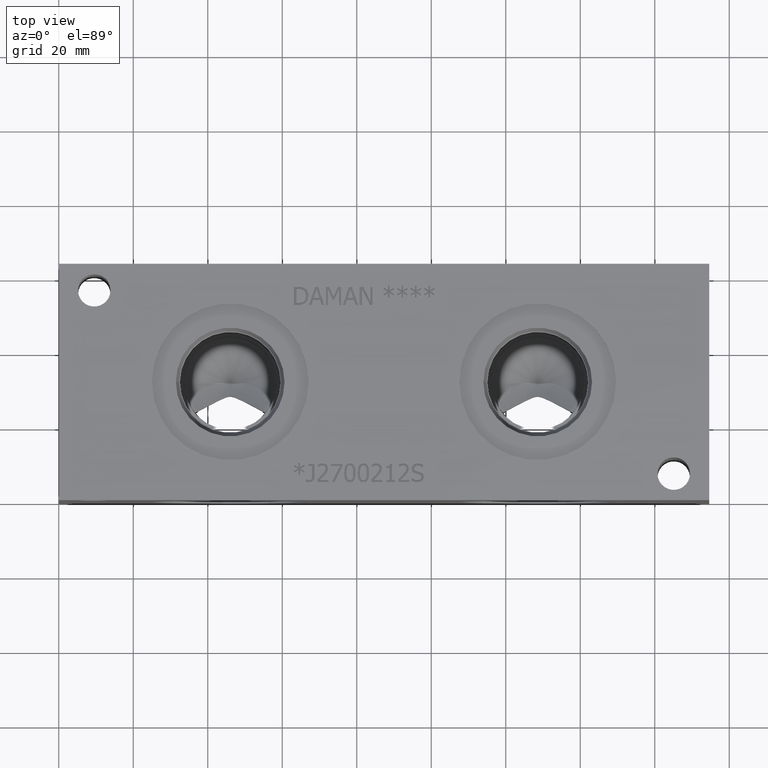
[diagram: clean part render]
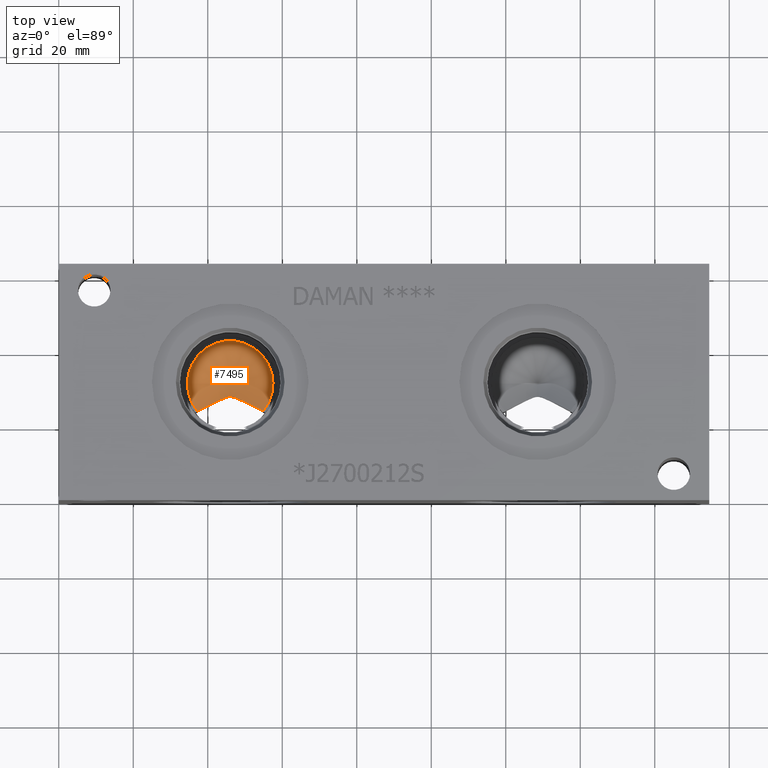
[diagram: same view with one face highlighted and labeled with its STEP entity id]
A machine part, top view. The second image highlights one B-rep face of the part: STEP entity #7495.
In plain terms, the highlighted conical surface has half-angle 60 deg.
Its self-contained STEP definition (entity closure, byte-faithful):
#45=CONICAL_SURFACE('',#7897,5.7531,1.0471975511966);
#171=CIRCLE('',#7898,11.5062);
#172=CIRCLE('',#7899,11.5062);
#443=B_SPLINE_CURVE_WITH_KNOTS('',3,(#12519,#12520,#12521,#12522,#12523,
#12524,#12525,#12526,#12527,#12528,#12529,#12530,#12531,#12532,#12533,#12534,
#12535,#12536,#12537,#12538,#12539,#12540),.UNSPECIFIED.,.F.,.F.,(4,2,2,
2,2,2,2,2,2,2,4),(2.02414178422364,2.44755953079405,2.85548611925973,3.05944941349257,
3.16143106060898,3.2634127077254,3.36539435484182,3.46737600195824,3.67133929619108,
4.07926588465675,4.50268363122717),.UNSPECIFIED.);
#886=FACE_OUTER_BOUND('',#1295,.T.);
#1295=EDGE_LOOP('',(#6435,#6436,#6437,#6438,#6439));
#2031=LINE('',#12828,#2745);
#2745=VECTOR('',#9376,5.7531);
#3358=VERTEX_POINT('',#12513);
#3359=VERTEX_POINT('',#12518);
#3431=VERTEX_POINT('',#12825);
#3432=VERTEX_POINT('',#12827);
#4339=EDGE_CURVE('',#3358,#3359,#443,.T.);
#4453=EDGE_CURVE('',#3358,#3431,#171,.T.);
#4454=EDGE_CURVE('',#3431,#3432,#2031,.T.);
#4455=EDGE_CURVE('',#3431,#3359,#172,.T.);
#6435=ORIENTED_EDGE('',*,*,#4339,.F.);
#6436=ORIENTED_EDGE('',*,*,#4453,.T.);
#6437=ORIENTED_EDGE('',*,*,#4454,.T.);
#6438=ORIENTED_EDGE('',*,*,#4454,.F.);
#6439=ORIENTED_EDGE('',*,*,#4455,.T.);
#7495=ADVANCED_FACE('',(#886),#45,.F.);
#7897=AXIS2_PLACEMENT_3D('',#12824,#9372,#9373);
#7898=AXIS2_PLACEMENT_3D('',#12826,#9374,#9375);
#7899=AXIS2_PLACEMENT_3D('',#12829,#9377,#9378);
#9372=DIRECTION('center_axis',(0.,0.,1.));
#9373=DIRECTION('ref_axis',(1.,0.,0.));
#9374=DIRECTION('center_axis',(0.,0.,1.));
#9375=DIRECTION('ref_axis',(1.,0.,0.));
#9376=DIRECTION('',(0.866025403784439,1.06057523872491E-16,-0.5));
#9377=DIRECTION('center_axis',(0.,0.,1.));
#9378=DIRECTION('ref_axis',(1.,0.,0.));
#12513=CARTESIAN_POINT('',(54.8277320002297,24.3404773001675,38.71061));
#12518=CARTESIAN_POINT('',(37.2218679997704,24.3404773001675,38.71061));
#12519=CARTESIAN_POINT('Ctrl Pts',(54.8277320002297,24.3404773001675,38.71061));
#12520=CARTESIAN_POINT('Ctrl Pts',(53.8037958349633,24.8781816467988,38.058416596529));
#12521=CARTESIAN_POINT('Ctrl Pts',(52.8020873279615,25.4022862071663,37.4250296666646));
#12522=CARTESIAN_POINT('Ctrl Pts',(50.8720991065431,26.3988534717776,36.2317778502111));
#12523=CARTESIAN_POINT('Ctrl Pts',(49.9607158487557,26.8665779999652,35.6767070399648));
#12524=CARTESIAN_POINT('Ctrl Pts',(48.5884347527706,27.5245012542527,34.9171818063573));
#12525=CARTESIAN_POINT('Ctrl Pts',(48.1378926534055,27.7346725440007,34.6787239571889));
#12526=CARTESIAN_POINT('Ctrl Pts',(47.4218816822241,28.0184978243897,34.365515407002));
#12527=CARTESIAN_POINT('Ctrl Pts',(47.1782936899452,28.1073718094077,34.2691754412068));
#12528=CARTESIAN_POINT('Ctrl Pts',(46.6491084338573,28.2529939942306,34.1137682086338));
#12529=CARTESIAN_POINT('Ctrl Pts',(46.3647388237214,28.3118540956523,34.0525167960387));
#12530=CARTESIAN_POINT('Ctrl Pts',(45.6848611762786,28.3118540956523,34.0525167960387));
#12531=CARTESIAN_POINT('Ctrl Pts',(45.4004915661427,28.2529939942306,34.1137682086338));
#12532=CARTESIAN_POINT('Ctrl Pts',(44.8713063100548,28.1073718094077,34.2691754412068));
#12533=CARTESIAN_POINT('Ctrl Pts',(44.627718317776,28.0184978243897,34.365515407002));
#12534=CARTESIAN_POINT('Ctrl Pts',(43.9117073465945,27.7346725440007,34.6787239571889));
#12535=CARTESIAN_POINT('Ctrl Pts',(43.4611652472293,27.5245012542527,34.9171818063573));
#12536=CARTESIAN_POINT('Ctrl Pts',(42.0888841512443,26.8665779999652,35.6767070399648));
#12537=CARTESIAN_POINT('Ctrl Pts',(41.1775008934569,26.3988534717776,36.2317778502111));
#12538=CARTESIAN_POINT('Ctrl Pts',(39.2475126720385,25.4022862071663,37.4250296666646));
#12539=CARTESIAN_POINT('Ctrl Pts',(38.2458041650367,24.8781816467988,38.058416596529));
#12540=CARTESIAN_POINT('Ctrl Pts',(37.2218679997703,24.3404773001675,38.71061));
#12824=CARTESIAN_POINT('Origin',(46.0248,31.75,35.3890561663252));
#12825=CARTESIAN_POINT('',(34.5186,31.75,38.71061));
#12826=CARTESIAN_POINT('Origin',(46.0248,31.75,38.71061));
#12827=CARTESIAN_POINT('',(46.0248,31.75,32.0675023326503));
#12828=CARTESIAN_POINT('',(40.2717,31.75,35.3890561663252));
#12829=CARTESIAN_POINT('Origin',(46.0248,31.75,38.71061));